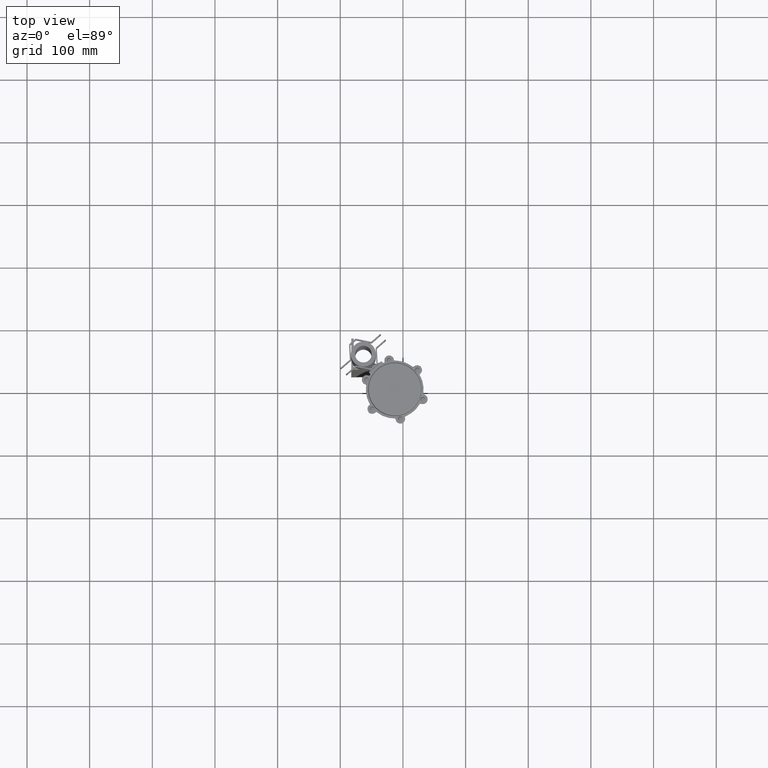
[diagram: clean part render]
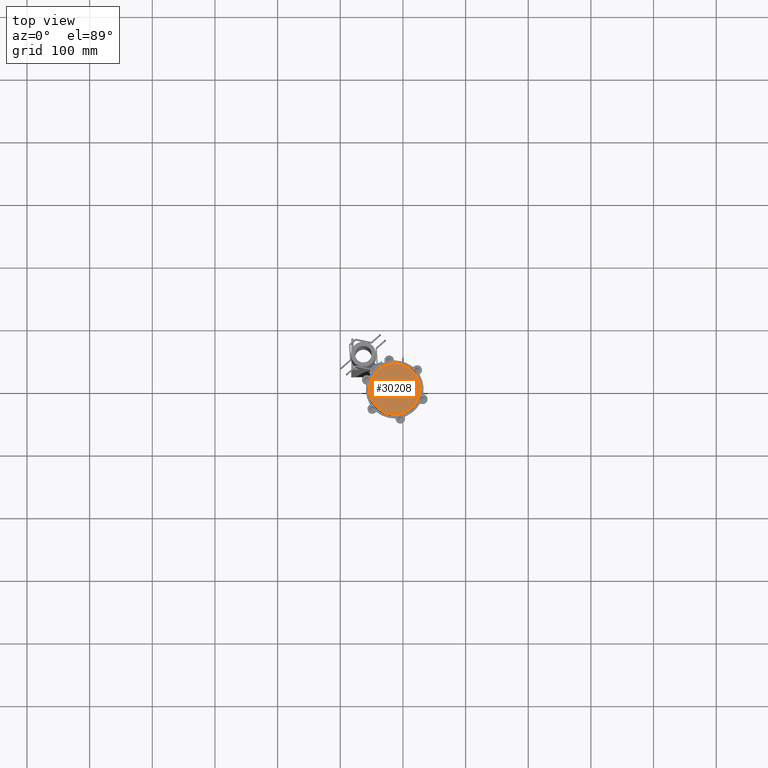
[diagram: same view with one face highlighted and labeled with its STEP entity id]
A machine part, top view. The second image highlights one B-rep face of the part: STEP entity #30208.
In plain terms, the highlighted planar face has unit normal (-0, -0, 1).
Its self-contained STEP definition (entity closure, byte-faithful):
#312 = CARTESIAN_POINT ( 'NONE',  ( -3.046066003598024700E-013, -1.210511725580065700E-012, -43.00000000000000000 ) ) ;
#891 = FACE_OUTER_BOUND ( 'NONE', #33506, .T. ) ;
#1135 = CARTESIAN_POINT ( 'NONE',  ( 40.49999999999970200, -1.205429441363604100E-012, -43.00000000000000000 ) ) ;
#1360 = CARTESIAN_POINT ( 'NONE',  ( -40.50000000000031300, -1.210511725580065700E-012, -43.00000000000000000 ) ) ;
#3016 = CIRCLE ( 'NONE', #6725, 40.50000000000000700 ) ;
#3266 = DIRECTION ( 'NONE',  ( -1.000000000000000000, 0.0000000000000000000, 0.0000000000000000000 ) ) ;
#6272 = CARTESIAN_POINT ( 'NONE',  ( -3.046066003598024700E-013, -1.210511725580065700E-012, -43.00000000000000000 ) ) ;
#6584 = CIRCLE ( 'NONE', #25449, 40.50000000000000700 ) ;
#6725 = AXIS2_PLACEMENT_3D ( 'NONE', #312, #20906, #3266 ) ;
#7164 = VERTEX_POINT ( 'NONE', #1360 ) ;
#10308 = EDGE_CURVE ( 'NONE', #27640, #7164, #3016, .T. ) ;
#11365 = EDGE_CURVE ( 'NONE', #7164, #27640, #6584, .T. ) ;
#12175 = PLANE ( 'NONE',  #36424 ) ;
#13041 = DIRECTION ( 'NONE',  ( 0.0000000000000000000, 0.0000000000000000000, -1.000000000000000000 ) ) ;
#15124 = DIRECTION ( 'NONE',  ( -1.000000000000000000, 0.0000000000000000000, -0.0000000000000000000 ) ) ;
#19038 = ORIENTED_EDGE ( 'NONE', *, *, #10308, .T. ) ;
#20906 = DIRECTION ( 'NONE',  ( 0.0000000000000000000, 0.0000000000000000000, -1.000000000000000000 ) ) ;
#25449 = AXIS2_PLACEMENT_3D ( 'NONE', #30633, #13041, #33586 ) ;
#27640 = VERTEX_POINT ( 'NONE', #1135 ) ;
#29929 = ORIENTED_EDGE ( 'NONE', *, *, #11365, .T. ) ;
#30208 = ADVANCED_FACE ( 'NONE', ( #891 ), #12175, .T. ) ;
#30633 = CARTESIAN_POINT ( 'NONE',  ( -3.046066003598024700E-013, -1.210511725580065700E-012, -43.00000000000000000 ) ) ;
#32692 = DIRECTION ( 'NONE',  ( 0.0000000000000000000, 0.0000000000000000000, -1.000000000000000000 ) ) ;
#33506 = EDGE_LOOP ( 'NONE', ( #29929, #19038 ) ) ;
#33586 = DIRECTION ( 'NONE',  ( -1.000000000000000000, 0.0000000000000000000, 0.0000000000000000000 ) ) ;
#36424 = AXIS2_PLACEMENT_3D ( 'NONE', #6272, #32692, #15124 ) ;